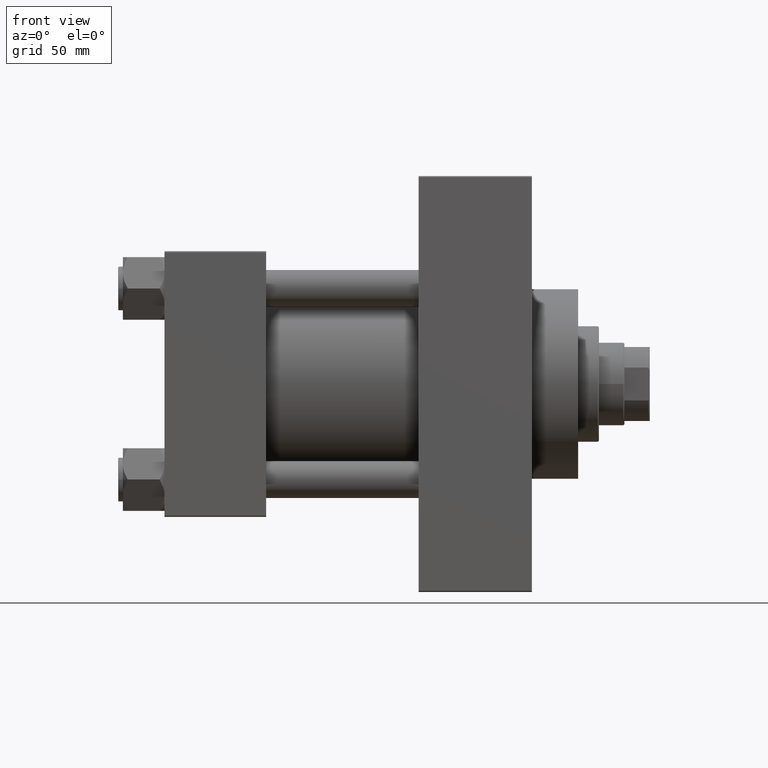
[diagram: clean part render]
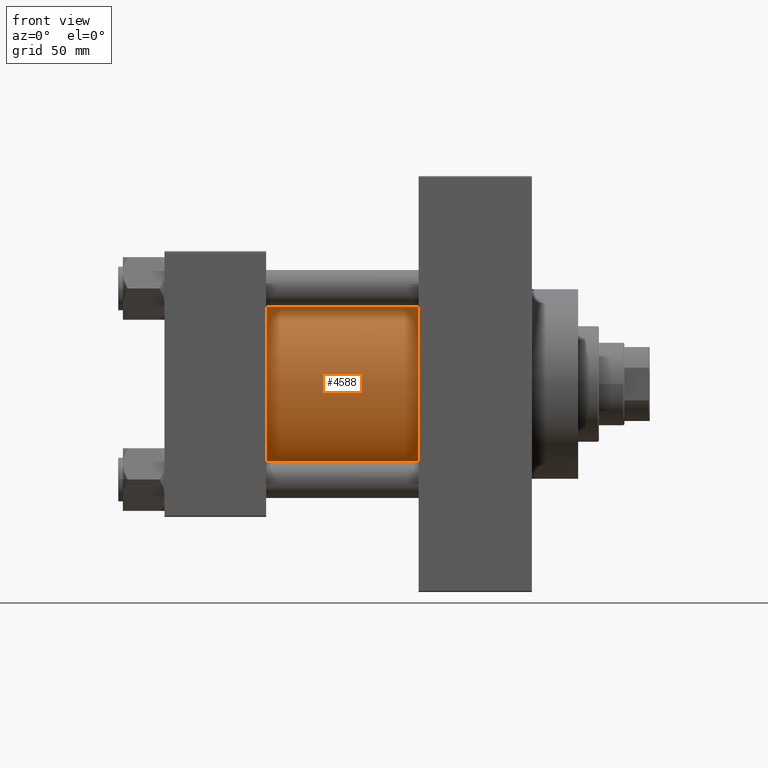
[diagram: same view with one face highlighted and labeled with its STEP entity id]
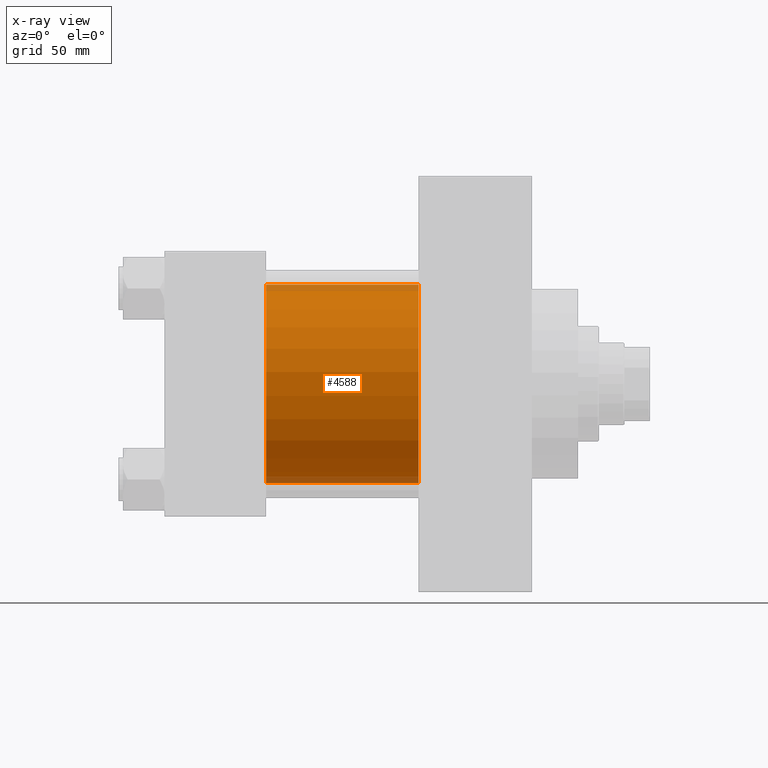
[diagram: x-ray of the same camera — body ghosted, the highlighted face saturated]
A machine part, front view. The second image highlights one B-rep face of the part: STEP entity #4588.
The next image is the same camera in x-ray: the body ghosted, the highlighted face saturated — about 7% of this face is hidden behind the body in this view.
In plain terms, the highlighted cylindrical surface (partial cylindrical patch) has radius 43 mm, axis along (-1, -0, -0).
Its self-contained STEP definition (entity closure, byte-faithful):
#65 = CARTESIAN_POINT ( 'NONE',  ( 44.00000000000000000, -2.602085213965210642E-15, 43.00000000000000000 ) ) ;
#2308 = DIRECTION ( 'NONE',  ( -1.000000000000000000, -0.000000000000000000, -0.000000000000000000 ) ) ;
#2475 = VERTEX_POINT ( 'NONE', #26326 ) ;
#4588 = ADVANCED_FACE ( 'NONE', ( #21361 ), #36589, .T. ) ;
#4855 = ORIENTED_EDGE ( 'NONE', *, *, #47502, .T. ) ;
#5069 = CARTESIAN_POINT ( 'NONE',  ( 44.00000000000000000, 2.663896022368408223E-15, -43.00000000000000000 ) ) ;
#5925 = AXIS2_PLACEMENT_3D ( 'NONE', #36075, #40052, #24103 ) ;
#9789 = EDGE_CURVE ( 'NONE', #2475, #12336, #36443, .T. ) ;
#9930 = CIRCLE ( 'NONE', #5925, 43.00000000000000000 ) ;
#10604 = DIRECTION ( 'NONE',  ( -1.000000000000000000, -0.000000000000000000, -0.000000000000000000 ) ) ;
#11679 = ORIENTED_EDGE ( 'NONE', *, *, #22264, .F. ) ;
#12336 = VERTEX_POINT ( 'NONE', #65 ) ;
#13870 = AXIS2_PLACEMENT_3D ( 'NONE', #20520, #42756, #31773 ) ;
#15977 = AXIS2_PLACEMENT_3D ( 'NONE', #40819, #2308, #22778 ) ;
#17009 = EDGE_LOOP ( 'NONE', ( #11679, #35137, #46870, #4855 ) ) ;
#20281 = CIRCLE ( 'NONE', #13870, 43.00000000000000000 ) ;
#20520 = CARTESIAN_POINT ( 'NONE',  ( 44.00000000000000000, -2.602085213965210642E-15, 0.000000000000000000 ) ) ;
#21361 = FACE_OUTER_BOUND ( 'NONE', #17009, .T. ) ;
#21884 = CARTESIAN_POINT ( 'NONE',  ( 110.0000000000000000, 2.663896022368408223E-15, -43.00000000000000000 ) ) ;
#22264 = EDGE_CURVE ( 'NONE', #25527, #29989, #37597, .T. ) ;
#22525 = EDGE_CURVE ( 'NONE', #2475, #25527, #9930, .T. ) ;
#22778 = DIRECTION ( 'NONE',  ( 0.000000000000000000, 0.000000000000000000, 1.000000000000000000 ) ) ;
#24103 = DIRECTION ( 'NONE',  ( 0.000000000000000000, 0.000000000000000000, -1.000000000000000000 ) ) ;
#24479 = DIRECTION ( 'NONE',  ( -1.000000000000000000, -0.000000000000000000, -0.000000000000000000 ) ) ;
#25213 = CARTESIAN_POINT ( 'NONE',  ( 110.0000000000000000, -2.602085213965210642E-15, 43.00000000000000000 ) ) ;
#25527 = VERTEX_POINT ( 'NONE', #47910 ) ;
#26326 = CARTESIAN_POINT ( 'NONE',  ( 110.0000000000000000, -2.602085213965210642E-15, 43.00000000000000000 ) ) ;
#29989 = VERTEX_POINT ( 'NONE', #5069 ) ;
#31773 = DIRECTION ( 'NONE',  ( 0.000000000000000000, 0.000000000000000000, 1.000000000000000000 ) ) ;
#35137 = ORIENTED_EDGE ( 'NONE', *, *, #22525, .F. ) ;
#36075 = CARTESIAN_POINT ( 'NONE',  ( 110.0000000000000000, -2.602085213965210642E-15, 0.000000000000000000 ) ) ;
#36443 = LINE ( 'NONE', #25213, #46453 ) ;
#36589 = CYLINDRICAL_SURFACE ( 'NONE', #15977, 43.00000000000000000 ) ;
#37597 = LINE ( 'NONE', #21884, #41831 ) ;
#40052 = DIRECTION ( 'NONE',  ( 1.000000000000000000, 0.000000000000000000, 0.000000000000000000 ) ) ;
#40819 = CARTESIAN_POINT ( 'NONE',  ( 110.0000000000000000, -2.602085213965210642E-15, 0.000000000000000000 ) ) ;
#41831 = VECTOR ( 'NONE', #10604, 1000.000000000000000 ) ;
#42756 = DIRECTION ( 'NONE',  ( 1.000000000000000000, -0.000000000000000000, 0.000000000000000000 ) ) ;
#46453 = VECTOR ( 'NONE', #24479, 1000.000000000000000 ) ;
#46870 = ORIENTED_EDGE ( 'NONE', *, *, #9789, .T. ) ;
#47502 = EDGE_CURVE ( 'NONE', #12336, #29989, #20281, .T. ) ;
#47910 = CARTESIAN_POINT ( 'NONE',  ( 110.0000000000000000, 2.663896022368408223E-15, -43.00000000000000000 ) ) ;